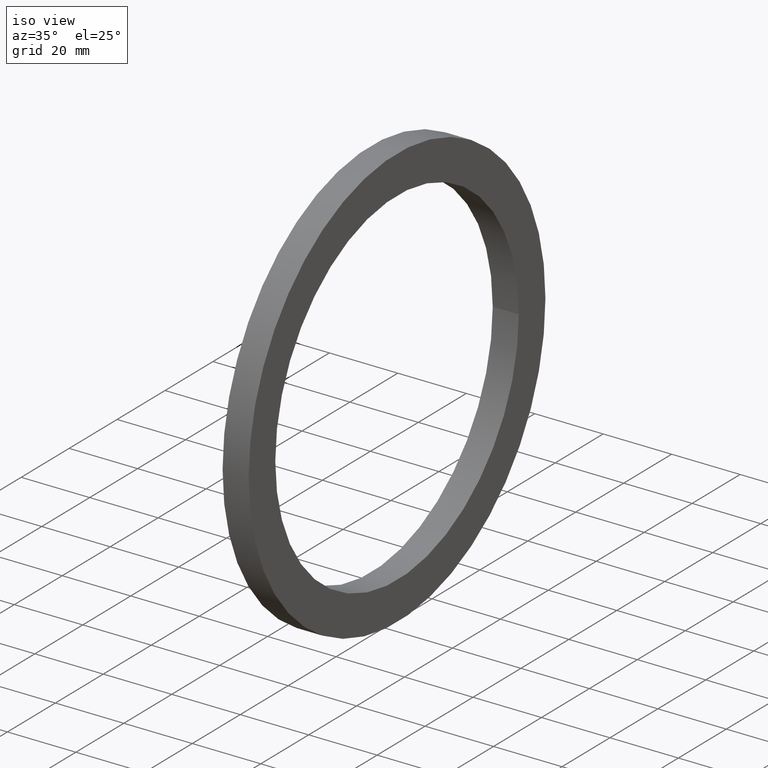
[diagram: clean part render]
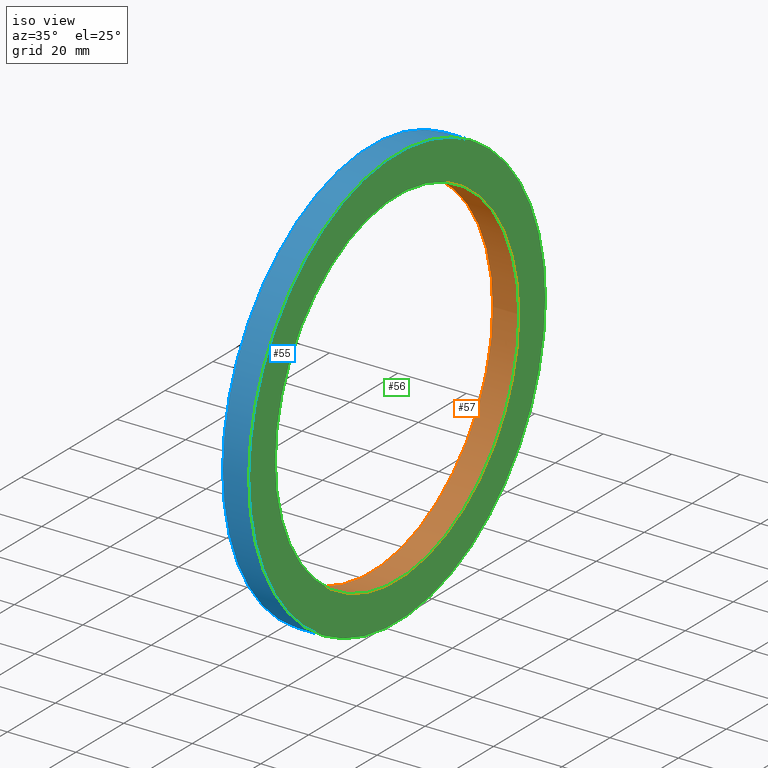
[diagram: same view with three faces highlighted in distinct colors, each labeled with its STEP entity id]
A machine part, iso view with three faces highlighted in distinct colors.
Their STEP definitions:

[orange] entity #57 — the highlighted cylindrical surface (bore or boss wall) has radius 50.8 mm, axis along (1, 0, 0).
#19=FACE_BOUND('',#30,.T.);
#23=FACE_OUTER_BOUND('',#29,.T.);
#29=EDGE_LOOP('',(#49));
#30=EDGE_LOOP('',(#50));
#35=CIRCLE('',#71,2.);
#36=CIRCLE('',#73,2.);
#39=VERTEX_POINT('',#100);
#40=VERTEX_POINT('',#103);
#43=EDGE_CURVE('',#39,#39,#35,.T.);
#44=EDGE_CURVE('',#40,#40,#36,.T.);
#49=ORIENTED_EDGE('',*,*,#44,.F.);
#50=ORIENTED_EDGE('',*,*,#43,.T.);
#54=CYLINDRICAL_SURFACE('',#72,2.);
#57=ADVANCED_FACE('',(#23,#19),#54,.F.);
#71=AXIS2_PLACEMENT_3D('',#101,#85,#86);
#72=AXIS2_PLACEMENT_3D('',#102,#87,#88);
#73=AXIS2_PLACEMENT_3D('',#104,#89,#90);
#85=DIRECTION('center_axis',(1.,0.,0.));
#86=DIRECTION('ref_axis',(0.,1.,0.));
#87=DIRECTION('center_axis',(1.,0.,0.));
#88=DIRECTION('ref_axis',(0.,1.,0.));
#89=DIRECTION('center_axis',(1.,0.,0.));
#90=DIRECTION('ref_axis',(0.,1.,0.));
#100=CARTESIAN_POINT('',(0.15,2.,0.));
#101=CARTESIAN_POINT('Origin',(0.15,0.,0.));
#102=CARTESIAN_POINT('Origin',(0.,0.,0.));
#103=CARTESIAN_POINT('',(-0.15,2.,0.));
#104=CARTESIAN_POINT('Origin',(-0.15,0.,0.));

[blue] entity #55 — the highlighted cylindrical surface (bore or boss wall) has radius 61.9125 mm, axis along (1, 0, 0).
#17=FACE_BOUND('',#26,.T.);
#21=FACE_OUTER_BOUND('',#25,.T.);
#25=EDGE_LOOP('',(#45));
#26=EDGE_LOOP('',(#46));
#33=CIRCLE('',#68,2.4375);
#34=CIRCLE('',#69,2.4375);
#37=VERTEX_POINT('',#95);
#38=VERTEX_POINT('',#97);
#41=EDGE_CURVE('',#37,#37,#33,.T.);
#42=EDGE_CURVE('',#38,#38,#34,.T.);
#45=ORIENTED_EDGE('',*,*,#41,.F.);
#46=ORIENTED_EDGE('',*,*,#42,.T.);
#53=CYLINDRICAL_SURFACE('',#67,2.4375);
#55=ADVANCED_FACE('',(#21,#17),#53,.T.);
#67=AXIS2_PLACEMENT_3D('',#94,#77,#78);
#68=AXIS2_PLACEMENT_3D('',#96,#79,#80);
#69=AXIS2_PLACEMENT_3D('',#98,#81,#82);
#77=DIRECTION('center_axis',(1.,0.,0.));
#78=DIRECTION('ref_axis',(0.,1.,0.));
#79=DIRECTION('center_axis',(1.,0.,0.));
#80=DIRECTION('ref_axis',(0.,1.,0.));
#81=DIRECTION('center_axis',(1.,0.,0.));
#82=DIRECTION('ref_axis',(0.,1.,0.));
#94=CARTESIAN_POINT('Origin',(0.,0.,0.));
#95=CARTESIAN_POINT('',(0.15,2.4375,0.));
#96=CARTESIAN_POINT('Origin',(0.15,0.,0.));
#97=CARTESIAN_POINT('',(-0.15,2.4375,0.));
#98=CARTESIAN_POINT('Origin',(-0.15,0.,0.));

[green] entity #56 — the highlighted planar face has unit normal (1, 0, 0).
#15=PLANE('',#70);
#18=FACE_BOUND('',#28,.T.);
#22=FACE_OUTER_BOUND('',#27,.T.);
#27=EDGE_LOOP('',(#47));
#28=EDGE_LOOP('',(#48));
#33=CIRCLE('',#68,2.4375);
#35=CIRCLE('',#71,2.);
#37=VERTEX_POINT('',#95);
#39=VERTEX_POINT('',#100);
#41=EDGE_CURVE('',#37,#37,#33,.T.);
#43=EDGE_CURVE('',#39,#39,#35,.T.);
#47=ORIENTED_EDGE('',*,*,#41,.T.);
#48=ORIENTED_EDGE('',*,*,#43,.F.);
#56=ADVANCED_FACE('',(#22,#18),#15,.T.);
#68=AXIS2_PLACEMENT_3D('',#96,#79,#80);
#70=AXIS2_PLACEMENT_3D('',#99,#83,#84);
#71=AXIS2_PLACEMENT_3D('',#101,#85,#86);
#79=DIRECTION('center_axis',(1.,0.,0.));
#80=DIRECTION('ref_axis',(0.,1.,0.));
#83=DIRECTION('center_axis',(1.,0.,0.));
#84=DIRECTION('ref_axis',(0.,0.,-1.));
#85=DIRECTION('center_axis',(1.,0.,0.));
#86=DIRECTION('ref_axis',(0.,1.,0.));
#95=CARTESIAN_POINT('',(0.15,2.4375,0.));
#96=CARTESIAN_POINT('Origin',(0.15,0.,0.));
#99=CARTESIAN_POINT('Origin',(0.15,2.21875,0.));
#100=CARTESIAN_POINT('',(0.15,2.,0.));
#101=CARTESIAN_POINT('Origin',(0.15,0.,0.));